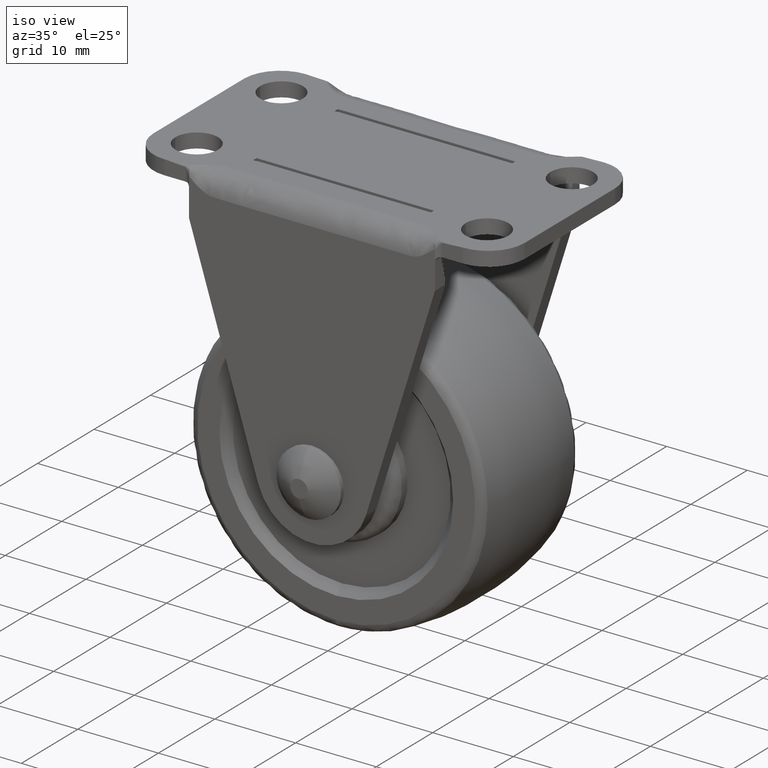
[diagram: clean part render]
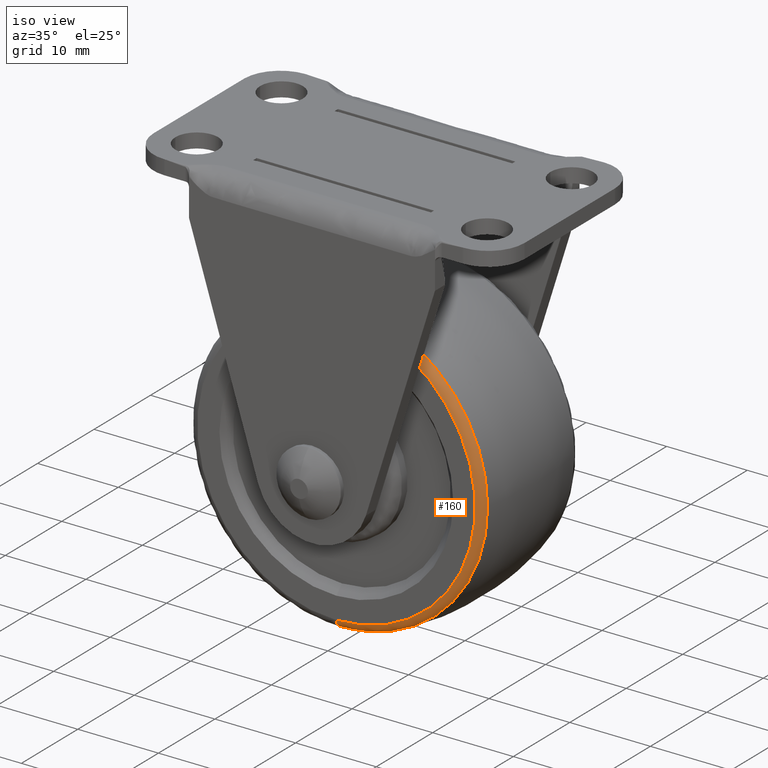
[diagram: same view with one face highlighted and labeled with its STEP entity id]
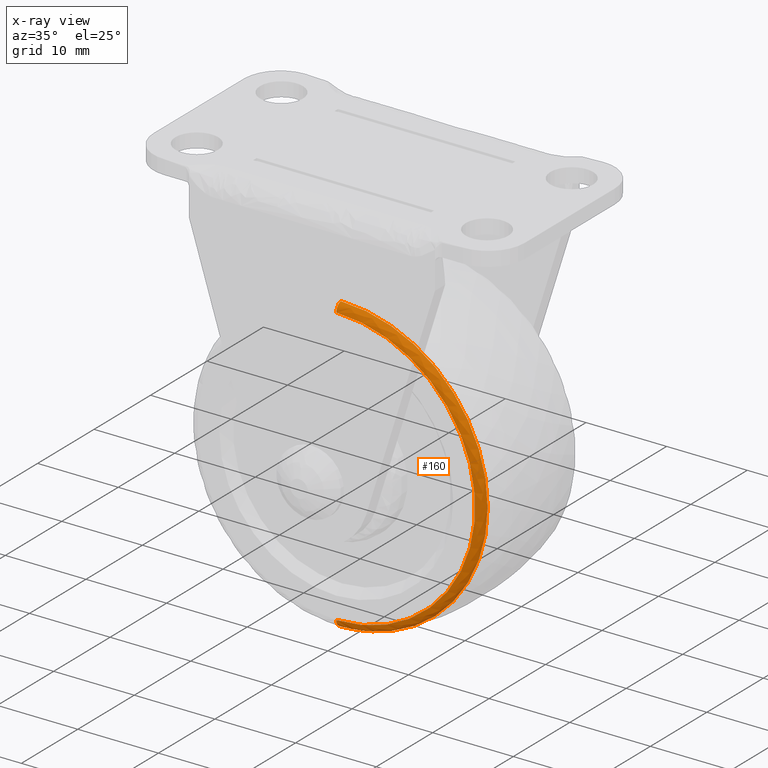
[diagram: x-ray of the same camera — body ghosted, the highlighted face saturated]
A machine part, iso view. The second image highlights one B-rep face of the part: STEP entity #160.
The next image is the same camera in x-ray: the body ghosted, the highlighted face saturated — about 0% of this face is hidden behind the body in this view.
In plain terms, the highlighted face is a freeform B-spline surface patch.
Its self-contained STEP definition (entity closure, byte-faithful):
#160=ADVANCED_FACE('',(#379),#378,.T.);
#378=( BOUNDED_SURFACE() B_SPLINE_SURFACE( 2,2,((#1549,#1550,#1551,#1552,#1553),(#1554,#1555,#1556,#1557,#1558),(#1559,#1560,#1561,#1562,#1563),(#1564,#1565,#1566,#1567,#1568),(#1569,#1570,#1571,#1572,#1573)), .UNSPECIFIED.,.F.,.F.,.F.) B_SPLINE_SURFACE_WITH_KNOTS((3,2,3),(3,2,3),(0.00000000000E+00,5.00000000000E-01,1.00000000000E+00),(0.00000000000E+00,5.00000000000E-01,1.00000000000E+00), .UNSPECIFIED. ) GEOMETRIC_REPRESENTATION_ITEM() RATIONAL_B_SPLINE_SURFACE(((1.00000000000E+00,7.75470499130E-01,1.00000000000E+00,7.75470499130E-01,1.00000000000E+00),(7.07106781187E-01,5.48340448545E-01,7.07106781187E-01,5.48340448545E-01,7.07106781187E-01),(1.00000000000E+00,7.75470499130E-01,1.00000000000E+00,7.75470499130E-01,1.00000000000E+00),(7.07106781187E-01,5.48340448545E-01,7.07106781187E-01,5.48340448545E-01,7.07106781187E-01),(1.00000000000E+00,7.75470499130E-01,1.00000000000E+00,7.75470499130E-01,1.00000000000E+00))) REPRESENTATION_ITEM('') SURFACE() );
#379=FACE_OUTER_BOUND('',#1574,.T.);
#1549=CARTESIAN_POINT('',(-7.36555114057E-20,-7.70270893581E+00,-1.82111310638E+01));
#1550=CARTESIAN_POINT('',(-7.29879833497E-20,-8.50000000000E+00,-1.80460865114E+01));
#1551=CARTESIAN_POINT('',(-6.96949470824E-20,-8.50000000000E+00,-1.72318919736E+01));
#1552=CARTESIAN_POINT('',(-6.64019108150E-20,-8.50000000000E+00,-1.64176974359E+01));
#1553=CARTESIAN_POINT('',(-6.57343827591E-20,-7.70270893581E+00,-1.62526528834E+01));
#1554=CARTESIAN_POINT('',(1.82111310638E+01,-7.70270893581E+00,-1.82111310638E+01));
#1555=CARTESIAN_POINT('',(1.80460865114E+01,-8.50000000000E+00,-1.80460865114E+01));
#1556=CARTESIAN_POINT('',(1.72318919736E+01,-8.50000000000E+00,-1.72318919736E+01));
#1557=CARTESIAN_POINT('',(1.64176974359E+01,-8.50000000000E+00,-1.64176974359E+01));
#1558=CARTESIAN_POINT('',(1.62526528834E+01,-7.70270893581E+00,-1.62526528834E+01));
#1559=CARTESIAN_POINT('',(1.82111310638E+01,-7.70270893581E+00,-1.11518382382E-15));
#1560=CARTESIAN_POINT('',(1.80460865114E+01,-8.50000000000E+00,-1.10507709215E-15));
#1561=CARTESIAN_POINT('',(1.72318919736E+01,-8.50000000000E+00,-1.05521876238E-15));
#1562=CARTESIAN_POINT('',(1.64176974359E+01,-8.50000000000E+00,-1.00536043262E-15));
#1563=CARTESIAN_POINT('',(1.62526528834E+01,-7.70270893581E+00,-9.95253700949E-16));
#1564=CARTESIAN_POINT('',(1.82111310638E+01,-7.70270893581E+00,1.82111310638E+01));
#1565=CARTESIAN_POINT('',(1.80460865114E+01,-8.50000000000E+00,1.80460865114E+01));
#1566=CARTESIAN_POINT('',(1.72318919736E+01,-8.50000000000E+00,1.72318919736E+01));
#1567=CARTESIAN_POINT('',(1.64176974359E+01,-8.50000000000E+00,1.64176974359E+01));
#1568=CARTESIAN_POINT('',(1.62526528834E+01,-7.70270893581E+00,1.62526528834E+01));
#1569=CARTESIAN_POINT('',(2.23029399213E-15,-7.70270893581E+00,1.82111310638E+01));
#1570=CARTESIAN_POINT('',(2.21008119631E-15,-8.50000000000E+00,1.80460865114E+01));
#1571=CARTESIAN_POINT('',(2.11036782982E-15,-8.50000000000E+00,1.72318919736E+01));
#1572=CARTESIAN_POINT('',(2.01065446333E-15,-8.50000000000E+00,1.64176974359E+01));
#1573=CARTESIAN_POINT('',(1.99044166751E-15,-7.70270893581E+00,1.62526528834E+01));
#1574=EDGE_LOOP('',(#2951,#2952,#2953,#2954));
#2951=ORIENTED_EDGE('',*,*,#3464,.T.);
#2952=ORIENTED_EDGE('',*,*,#3461,.T.);
#2953=ORIENTED_EDGE('',*,*,#3443,.F.);
#2954=ORIENTED_EDGE('',*,*,#3463,.F.);
#3443=EDGE_CURVE('',#3777,#3778,#3779,.T.);
#3461=EDGE_CURVE('',#3899,#3778,#3900,.T.);
#3463=EDGE_CURVE('',#3906,#3777,#3913,.T.);
#3464=EDGE_CURVE('',#3906,#3899,#3919,.T.);
#3777=VERTEX_POINT('',#5487);
#3778=VERTEX_POINT('',#5488);
#3779=CIRCLE('',#5492,1.72318920000E+01);
#3899=VERTEX_POINT('',#5569);
#3900=(BOUNDED_CURVE() B_SPLINE_CURVE(2,(#5570,#5571,#5572),.UNSPECIFIED.,.F.,.F.) B_SPLINE_CURVE_WITH_KNOTS((3,3),(0.00000000000E+00,4.99999990065E-01),.UNSPECIFIED.) CURVE() GEOMETRIC_REPRESENTATION_ITEM() RATIONAL_B_SPLINE_CURVE((1.00000000000E+00,7.75470499130E-01,1.00000000000E+00)) REPRESENTATION_ITEM('') );
#3906=VERTEX_POINT('',#5573);
#3913=(BOUNDED_CURVE() B_SPLINE_CURVE(2,(#5578,#5579,#5580),.UNSPECIFIED.,.F.,.F.) B_SPLINE_CURVE_WITH_KNOTS((3,3),(0.00000000000E+00,5.00000000000E-01),.UNSPECIFIED.) CURVE() GEOMETRIC_REPRESENTATION_ITEM() RATIONAL_B_SPLINE_CURVE((7.50000000000E-01,5.81602874347E-01,7.50000000000E-01)) REPRESENTATION_ITEM('') );
#3919=CIRCLE('',#5584,1.82111310638E+01);
#5487=CARTESIAN_POINT('',(0.00000000000E+00,-8.50000000000E+00,-1.72318920000E+01));
#5488=CARTESIAN_POINT('',(1.18423789293E-15,-8.50000000000E+00,1.72318920000E+01));
#5489=CARTESIAN_POINT('',(0.00000000000E+00,-8.50000000000E+00,9.88461408184E-16));
#5490=DIRECTION('',(0.00000000000E+00,-1.00000000000E+00,-0.00000000000E+00));
#5491=DIRECTION('',(-1.22460635382E-16,0.00000000000E+00,-1.00000000000E+00));
#5492=AXIS2_PLACEMENT_3D('',#5489,#5490,#5491);
#5569=CARTESIAN_POINT('',(1.18423789293E-15,-7.70270893581E+00,1.82111310638E+01));
#5570=CARTESIAN_POINT('',(-2.23014668111E-15,-7.70270893581E+00,1.82111310638E+01));
#5571=CARTESIAN_POINT('',(-2.20993522035E-15,-8.50000000000E+00,1.80460865114E+01));
#5572=CARTESIAN_POINT('',(-2.11022843993E-15,-8.50000000000E+00,1.72318919736E+01));
#5573=CARTESIAN_POINT('',(0.00000000000E+00,-7.70270893581E+00,-1.82111310638E+01));
#5578=CARTESIAN_POINT('',(3.55271367880E-15,-7.70270893581E+00,-1.82111310638E+01));
#5579=CARTESIAN_POINT('',(2.29068267767E-15,-8.50000000000E+00,-1.80460865114E+01));
#5580=CARTESIAN_POINT('',(2.96059473233E-15,-8.50000000000E+00,-1.72318919736E+01));
#5581=CARTESIAN_POINT('',(0.00000000000E+00,-7.70270893581E+00,9.88461408184E-16));
#5582=DIRECTION('',(0.00000000000E+00,-1.00000000000E+00,-0.00000000000E+00));
#5583=DIRECTION('',(-1.22460635382E-16,0.00000000000E+00,-1.00000000000E+00));
#5584=AXIS2_PLACEMENT_3D('',#5581,#5582,#5583);